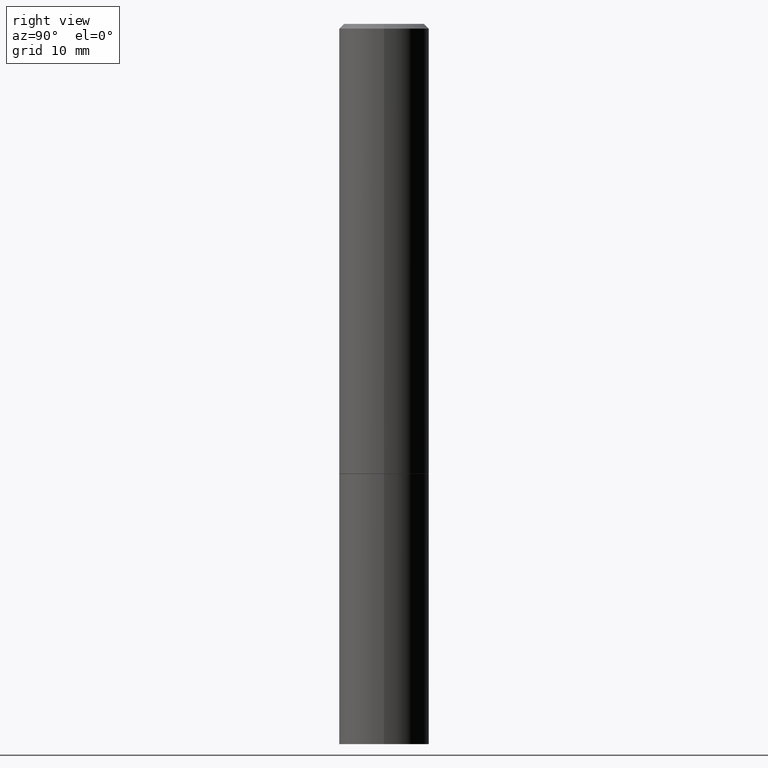
[diagram: clean part render]
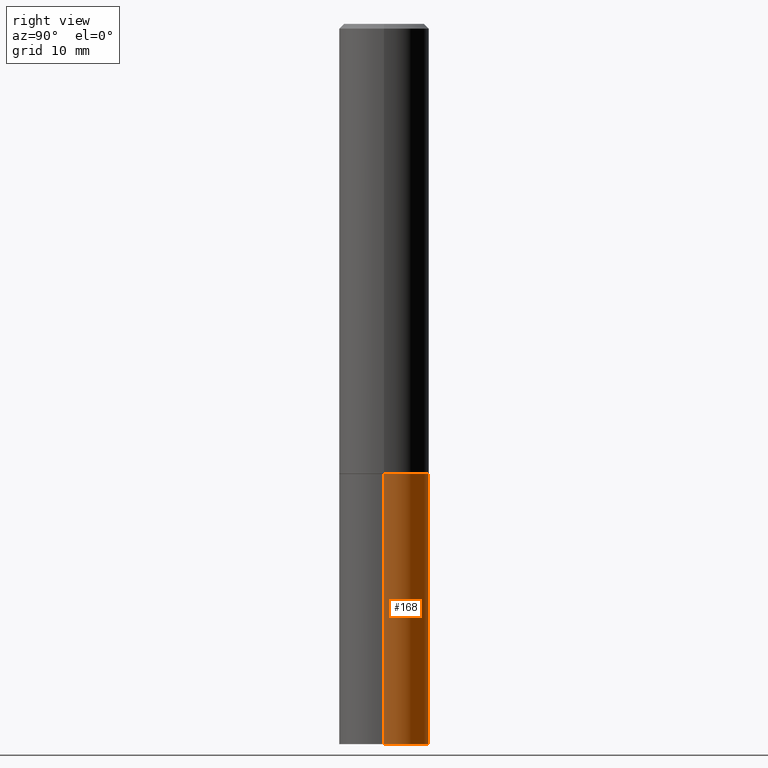
[diagram: same view with one face highlighted and labeled with its STEP entity id]
A machine part, right view. The second image highlights one B-rep face of the part: STEP entity #168.
In plain terms, the highlighted cylindrical surface (partial cylindrical patch) has radius 4.7625 mm, axis along (-0, 0, 1).
Its self-contained STEP definition (entity closure, byte-faithful):
#15 = VERTEX_POINT ( 'NONE', #189 ) ;
#19 = EDGE_CURVE ( 'NONE', #15, #348, #299, .T. ) ;
#28 = CARTESIAN_POINT ( 'NONE',  ( 0.1875000000000000278, -7.855833012397073715E-15, -1.875000000000000000 ) ) ;
#35 = ORIENTED_EDGE ( 'NONE', *, *, #342, .F. ) ;
#37 = CYLINDRICAL_SURFACE ( 'NONE', #328, 0.1875000000000000278 ) ;
#45 = CARTESIAN_POINT ( 'NONE',  ( -0.1875000000000000278, 1.332267629550188046E-15, -9.223003294227947991E-30 ) ) ;
#67 = EDGE_LOOP ( 'NONE', ( #222, #180, #35, #182 ) ) ;
#95 = DIRECTION ( 'NONE',  ( 1.000000000000000000, -6.982962677686266711E-15, 0.000000000000000000 ) ) ;
#103 = CARTESIAN_POINT ( 'NONE',  ( -0.1875000000000000278, -7.178218133879978893E-15, -1.875000000000000000 ) ) ;
#104 = AXIS2_PLACEMENT_3D ( 'NONE', #319, #153, #95 ) ;
#119 = AXIS2_PLACEMENT_3D ( 'NONE', #138, #261, #258 ) ;
#138 = CARTESIAN_POINT ( 'NONE',  ( 7.336406418555409790E-29, -1.047444401652943635E-14, -3.000000000000000444 ) ) ;
#142 = DIRECTION ( 'NONE',  ( -2.445468806185136597E-29, 3.491481338843145583E-15, 1.000000000000000000 ) ) ;
#150 = EDGE_CURVE ( 'NONE', #320, #218, #163, .T. ) ;
#153 = DIRECTION ( 'NONE',  ( -2.445468806185136597E-29, 3.491481338843145583E-15, 1.000000000000000000 ) ) ;
#159 = DIRECTION ( 'NONE',  ( -2.445468806185136877E-29, 3.491481338843145188E-15, 1.000000000000000000 ) ) ;
#163 = LINE ( 'NONE', #238, #359 ) ;
#168 = ADVANCED_FACE ( 'NONE', ( #181 ), #37, .T. ) ;
#180 = ORIENTED_EDGE ( 'NONE', *, *, #19, .T. ) ;
#181 = FACE_OUTER_BOUND ( 'NONE', #67, .T. ) ;
#182 = ORIENTED_EDGE ( 'NONE', *, *, #150, .F. ) ;
#188 = EDGE_CURVE ( 'NONE', #320, #15, #287, .T. ) ;
#189 = CARTESIAN_POINT ( 'NONE',  ( -0.1875000000000000278, -7.178218133879978893E-15, -3.000000000000000444 ) ) ;
#218 = VERTEX_POINT ( 'NONE', #28 ) ;
#222 = ORIENTED_EDGE ( 'NONE', *, *, #188, .T. ) ;
#238 = CARTESIAN_POINT ( 'NONE',  ( 0.1875000000000000278, -1.309305502066175008E-15, 9.142831454617381013E-30 ) ) ;
#258 = DIRECTION ( 'NONE',  ( 1.000000000000000000, -6.982962677686261189E-15, 0.000000000000000000 ) ) ;
#261 = DIRECTION ( 'NONE',  ( -2.445468806185136597E-29, 3.491481338843145583E-15, 1.000000000000000000 ) ) ;
#265 = CIRCLE ( 'NONE', #104, 0.1875000000000000278 ) ;
#273 = DIRECTION ( 'NONE',  ( -2.445468806185136877E-29, 3.491481338843145188E-15, 1.000000000000000000 ) ) ;
#287 = CIRCLE ( 'NONE', #119, 0.1875000000000000278 ) ;
#288 = CARTESIAN_POINT ( 'NONE',  ( 0.000000000000000000, 0.000000000000000000, 0.000000000000000000 ) ) ;
#299 = LINE ( 'NONE', #45, #339 ) ;
#311 = DIRECTION ( 'NONE',  ( 1.000000000000000000, -6.982962677686265922E-15, 4.876176775795935793E-29 ) ) ;
#318 = CARTESIAN_POINT ( 'NONE',  ( 0.1875000000000000278, -1.178374951859561136E-14, -3.000000000000000444 ) ) ;
#319 = CARTESIAN_POINT ( 'NONE',  ( 4.585254011597131119E-29, -6.546527510330898707E-15, -1.875000000000000000 ) ) ;
#320 = VERTEX_POINT ( 'NONE', #318 ) ;
#328 = AXIS2_PLACEMENT_3D ( 'NONE', #288, #142, #311 ) ;
#339 = VECTOR ( 'NONE', #159, 39.37007874015748143 ) ;
#342 = EDGE_CURVE ( 'NONE', #218, #348, #265, .T. ) ;
#348 = VERTEX_POINT ( 'NONE', #103 ) ;
#359 = VECTOR ( 'NONE', #273, 39.37007874015748143 ) ;